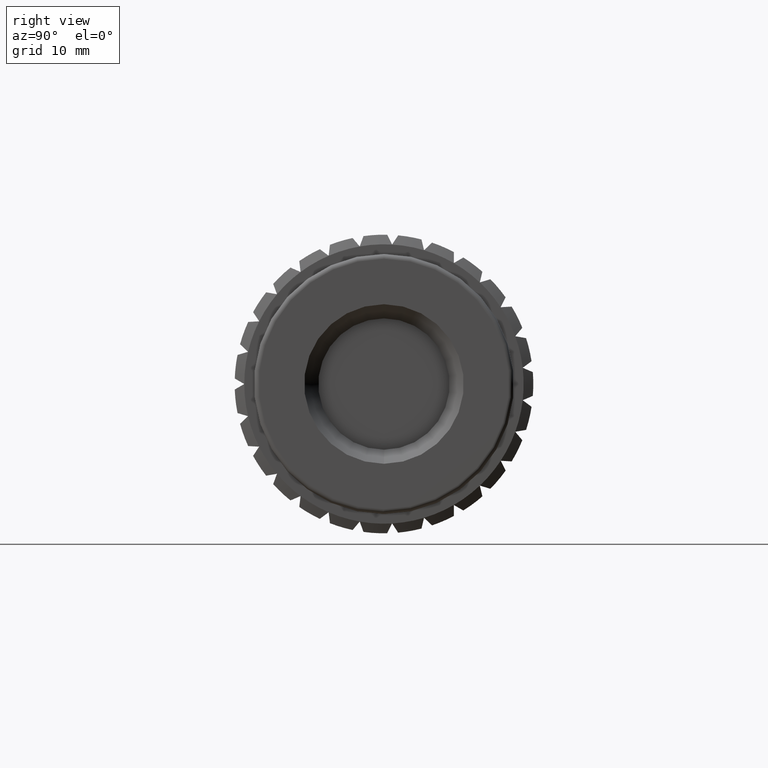
[diagram: clean part render]
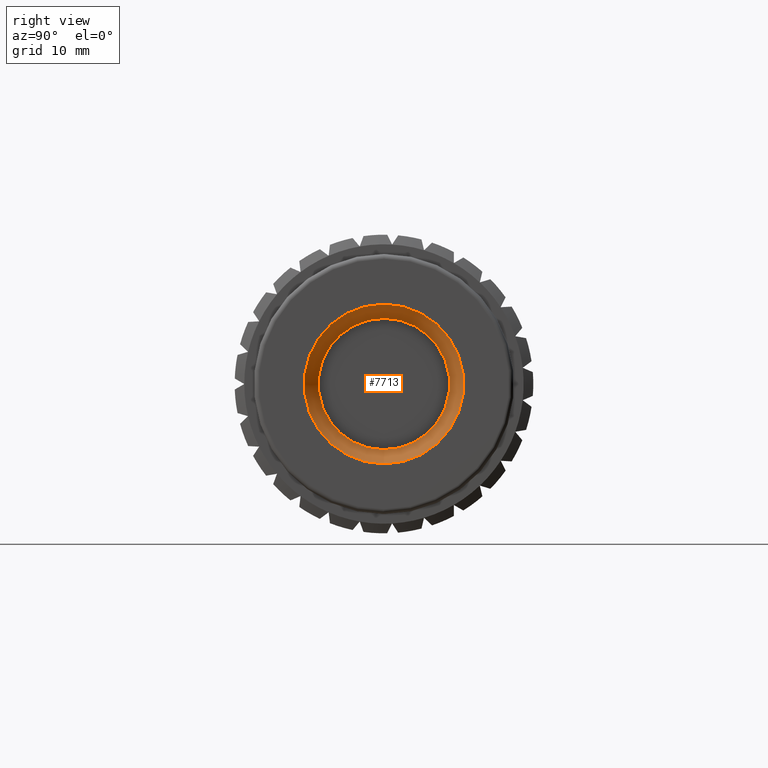
[diagram: same view with one face highlighted and labeled with its STEP entity id]
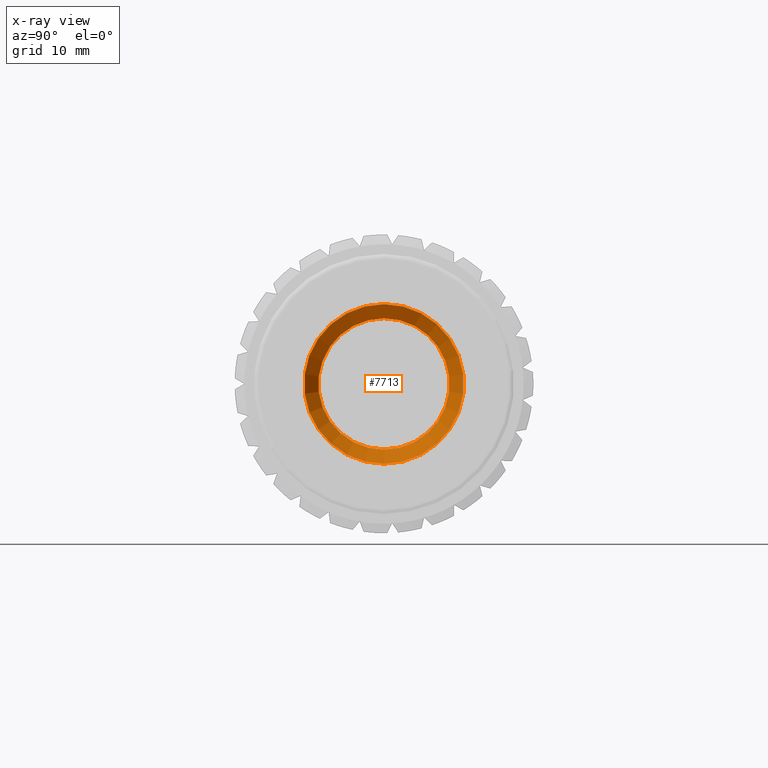
[diagram: x-ray of the same camera — body ghosted, the highlighted face saturated]
A machine part, right view. The second image highlights one B-rep face of the part: STEP entity #7713.
The next image is the same camera in x-ray: the body ghosted, the highlighted face saturated — about 0% of this face is hidden behind the body in this view.
In plain terms, the highlighted conical surface has half-angle 45 deg.
Its self-contained STEP definition (entity closure, byte-faithful):
#1446=FACE_BOUND('',#2579,.T.);
#2007=FACE_OUTER_BOUND('',#2578,.T.);
#2578=EDGE_LOOP('',(#6914));
#2579=EDGE_LOOP('',(#6915));
#2641=CIRCLE('',#7824,6.81818181818182);
#2962=CIRCLE('',#8638,8.28484848484848);
#3099=VERTEX_POINT('',#11452);
#3549=VERTEX_POINT('',#14393);
#3734=EDGE_CURVE('',#3099,#3099,#2641,.T.);
#4676=EDGE_CURVE('',#3549,#3549,#2962,.T.);
#6914=ORIENTED_EDGE('',*,*,#4676,.T.);
#6915=ORIENTED_EDGE('',*,*,#3734,.F.);
#7156=CONICAL_SURFACE('',#8639,8.28484848484848,45.0000000000001);
#7713=ADVANCED_FACE('',(#2007,#1446),#7156,.F.);
#7824=AXIS2_PLACEMENT_3D('',#11453,#8911,#8912);
#8638=AXIS2_PLACEMENT_3D('',#14394,#10808,#10809);
#8639=AXIS2_PLACEMENT_3D('',#14395,#10810,#10811);
#8911=DIRECTION('center_axis',(1.,0.,0.));
#8912=DIRECTION('ref_axis',(0.,0.,-1.));
#10808=DIRECTION('center_axis',(1.,0.,0.));
#10809=DIRECTION('ref_axis',(0.,0.,-1.));
#10810=DIRECTION('center_axis',(1.,0.,0.));
#10811=DIRECTION('ref_axis',(0.,0.,-1.));
#11452=CARTESIAN_POINT('',(30.5333333333333,0.,-6.81818181818182));
#11453=CARTESIAN_POINT('Origin',(30.5333333333333,0.,0.));
#14393=CARTESIAN_POINT('',(32.,0.,-8.28484848484848));
#14394=CARTESIAN_POINT('Origin',(32.,0.,0.));
#14395=CARTESIAN_POINT('Origin',(32.,0.,0.));